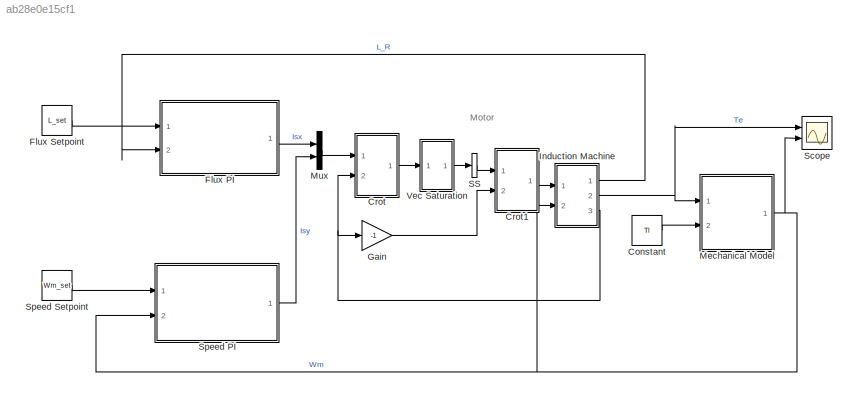
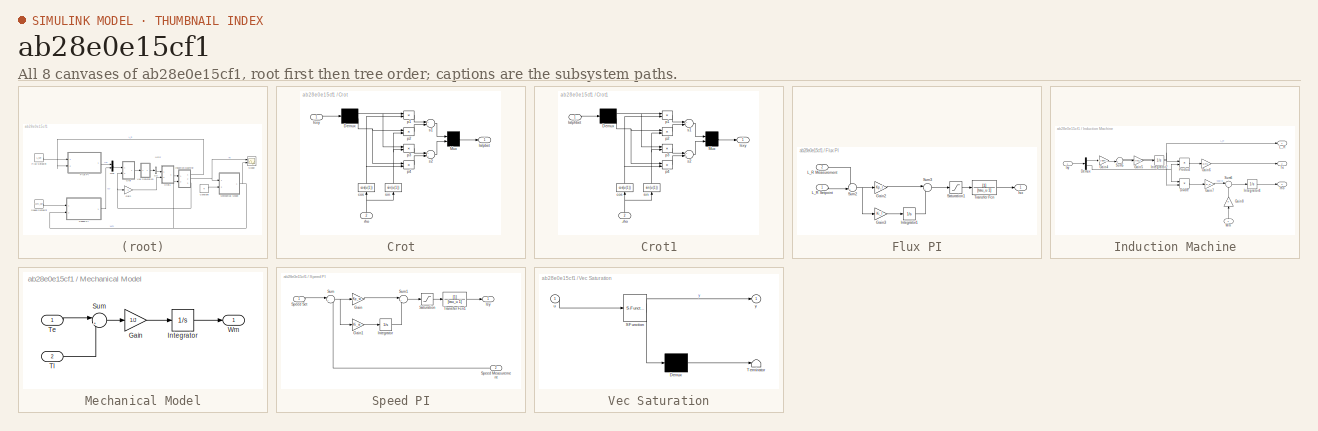
[diagram: thumbnail index - all 8 canvases of the model, root first then tree order]
MODEL slx_ab28e0e15cf1
KIND model
CONFIG AbsTol = auto
CONFIG EnableMultiTasking = off
CONFIG FixedStep = auto
CONFIG MaxStep = auto
CONFIG MinStep = auto
CONFIG RelTol = 1e-3
CONFIG SampleTimeConstraint = Unconstrained
CONFIG Solver = VariableStepAuto
CONFIG SolverName = VariableStepAuto
CONFIG StartTime = 0.0
CONFIG StopTime = runtime
BLOCK [Constant] Constant
  Value = Tl
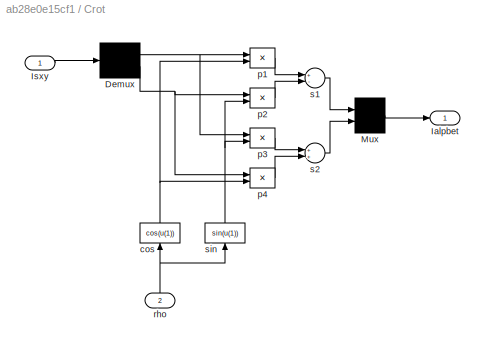
BLOCK [SubSystem] Crot
  Ports = [2, 1]
  RequestExecContextInheritance = off
  Variant = off
BLOCK [Demux] Crot/Demux
  Outputs = 2
  Ports = [1, 2]
BLOCK [Outport] Crot/Ialpbet
  IconDisplay = Port number
BLOCK [Inport] Crot/Isxy
  IconDisplay = Port number
BLOCK [Mux] Crot/Mux
  Inputs = 2
  Ports = [2, 1]
BLOCK [Fcn] Crot/cos
  Expr = cos(u(1))
BLOCK [Product] Crot/p1
  Ports = [2, 1]
BLOCK [Product] Crot/p2
  Ports = [2, 1]
BLOCK [Product] Crot/p3
  Ports = [2, 1]
BLOCK [Product] Crot/p4
  Ports = [2, 1]
BLOCK [Inport] Crot/rho
  IconDisplay = Port number
  Port = 2
BLOCK [Sum] Crot/s1
  Inputs = +-
  Ports = [2, 1]
BLOCK [Sum] Crot/s2
  Ports = [2, 1]
BLOCK [Fcn] Crot/sin
  Expr = sin(u(1))
BLOCK [SubSystem] Crot1
  Ports = [2, 1]
  RequestExecContextInheritance = off
  Variant = off
BLOCK [Inport] Crot1/-rho
  IconDisplay = Port number
  Port = 2
BLOCK [Demux] Crot1/Demux
  Outputs = 2
  Ports = [1, 2]
BLOCK [Inport] Crot1/Ialphbet
  IconDisplay = Port number
BLOCK [Outport] Crot1/Isxy
  IconDisplay = Port number
BLOCK [Mux] Crot1/Mux
  Inputs = 2
  Ports = [2, 1]
BLOCK [Fcn] Crot1/cos
  Expr = cos(u(1))
BLOCK [Product] Crot1/p1
  Ports = [2, 1]
BLOCK [Product] Crot1/p2
  Ports = [2, 1]
BLOCK [Product] Crot1/p3
  Ports = [2, 1]
BLOCK [Product] Crot1/p4
  Ports = [2, 1]
BLOCK [Sum] Crot1/s1
  Inputs = +-
  Ports = [2, 1]
BLOCK [Sum] Crot1/s2
  Ports = [2, 1]
BLOCK [Fcn] Crot1/sin
  Expr = sin(u(1))
BLOCK [SubSystem] Flux PI
  Ports = [2, 1]
  RequestExecContextInheritance = off
  Variant = off
BLOCK [Gain] Flux PI/Gain2
  Gain = Kp_l
  OutDataTypeStr = Inherit: Inherit via internal rule
  ParamDataTypeStr = Inherit: Inherit via internal rule
  SaturateOnIntegerOverflow = off
BLOCK [Gain] Flux PI/Gain3
  Gain = Ki_l
  OutDataTypeStr = Inherit: Inherit via internal rule
  ParamDataTypeStr = Inherit: Inherit via internal rule
  SaturateOnIntegerOverflow = off
BLOCK [Integrator] Flux PI/Integrator1
  LimitOutput = on
  LowerSaturationLimit = -Llim
  Ports = [1, 1]
  UpperSaturationLimit = Llim
BLOCK [Outport] Flux PI/Isx
  IconDisplay = Port number
BLOCK [Inport] Flux PI/L_R Measurement
  IconDisplay = Port number
  Port = 2
BLOCK [Inport] Flux PI/L_R Setpoint
  IconDisplay = Port number
BLOCK [Saturate] Flux PI/Saturation1
  InputPortMap = u0
  LowerLimit = -Isx_lim
  Ports = [1, 1]
  UpperLimit = Isx_lim
BLOCK [Sum] Flux PI/Sum2
  IconShape = round
  InputSameDT = off
  Inputs = -+|
  OutDataTypeStr = Inherit: Inherit via internal rule
  Ports = [2, 1]
  SaturateOnIntegerOverflow = off
BLOCK [Sum] Flux PI/Sum3
  IconShape = round
  InputSameDT = off
  Inputs = |++
  OutDataTypeStr = Inherit: Inherit via internal rule
  Ports = [2, 1]
  SaturateOnIntegerOverflow = off
BLOCK [TransferFcn] Flux PI/Transfer Fcn
  Denominator = [tau_u 1]
BLOCK [Constant] Flux Setpoint
  Value = L_set
BLOCK [Gain] Gain
  Gain = -1
  OutDataTypeStr = Inherit: Inherit via internal rule
  ParamDataTypeStr = Inherit: Inherit via internal rule
  SaturateOnIntegerOverflow = off
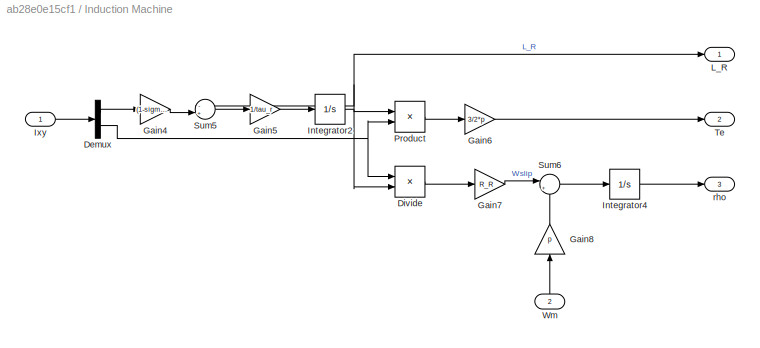
BLOCK [SubSystem] Induction Machine
  Ports = [2, 3]
  RequestExecContextInheritance = off
  Variant = off
BLOCK [Demux] Induction Machine/Demux
  DisplayOption = bar
  Outputs = 2
  Ports = [1, 2]
BLOCK [Product] Induction Machine/Divide
  InputSameDT = off
  Inputs = */
  OutDataTypeStr = Inherit: Inherit via internal rule
  Ports = [2, 1]
  RndMeth = Floor
  SaturateOnIntegerOverflow = off
BLOCK [Gain] Induction Machine/Gain4
  Gain = (1-sigma)*L_s
  OutDataTypeStr = Inherit: Inherit via internal rule
  ParamDataTypeStr = Inherit: Inherit via internal rule
  SaturateOnIntegerOverflow = off
BLOCK [Gain] Induction Machine/Gain5
  Gain = 1/tau_r
  OutDataTypeStr = Inherit: Inherit via internal rule
  ParamDataTypeStr = Inherit: Inherit via internal rule
  SaturateOnIntegerOverflow = off
BLOCK [Gain] Induction Machine/Gain6
  Gain = 3/2*p
  OutDataTypeStr = Inherit: Inherit via internal rule
  ParamDataTypeStr = Inherit: Inherit via internal rule
  SaturateOnIntegerOverflow = off
BLOCK [Gain] Induction Machine/Gain7
  Gain = R_R
  OutDataTypeStr = Inherit: Inherit via internal rule
  ParamDataTypeStr = Inherit: Inherit via internal rule
  SaturateOnIntegerOverflow = off
BLOCK [Gain] Induction Machine/Gain8
  Gain = p
  OutDataTypeStr = Inherit: Inherit via internal rule
  ParamDataTypeStr = Inherit: Inherit via internal rule
  SaturateOnIntegerOverflow = off
BLOCK [Integrator] Induction Machine/Integrator2
  InitialCondition = L0
  Ports = [1, 1]
BLOCK [Integrator] Induction Machine/Integrator4
  InitialCondition = rho0
  Ports = [1, 1]
BLOCK [Inport] Induction Machine/Ixy
  IconDisplay = Port number
BLOCK [Outport] Induction Machine/L_R
  IconDisplay = Port number
BLOCK [Product] Induction Machine/Product
  InputSameDT = off
  OutDataTypeStr = Inherit: Inherit via internal rule
  Ports = [2, 1]
  RndMeth = Floor
  SaturateOnIntegerOverflow = off
BLOCK [Sum] Induction Machine/Sum5
  IconShape = round
  InputSameDT = off
  Inputs = -+|
  OutDataTypeStr = Inherit: Inherit via internal rule
  Ports = [2, 1]
  SaturateOnIntegerOverflow = off
BLOCK [Sum] Induction Machine/Sum6
  IconShape = round
  InputSameDT = off
  Inputs = |++
  OutDataTypeStr = Inherit: Inherit via internal rule
  Ports = [2, 1]
  SaturateOnIntegerOverflow = off
BLOCK [Outport] Induction Machine/Te
  IconDisplay = Port number
  Port = 2
BLOCK [Inport] Induction Machine/Wm
  IconDisplay = Port number
  Port = 2
BLOCK [Outport] Induction Machine/rho
  IconDisplay = Port number
  Port = 3
BLOCK [SubSystem] Mechanical Model
  Ports = [2, 1]
  RequestExecContextInheritance = off
  Variant = off
BLOCK [Gain] Mechanical Model/Gain
  Gain = 1/J
  OutDataTypeStr = Inherit: Inherit via internal rule
  ParamDataTypeStr = Inherit: Inherit via internal rule
  SaturateOnIntegerOverflow = off
BLOCK [Integrator] Mechanical Model/Integrator
  InitialCondition = Wm0
  Ports = [1, 1]
BLOCK [Sum] Mechanical Model/Sum
  IconShape = round
  InputSameDT = off
  Inputs = |+-
  OutDataTypeStr = Inherit: Inherit via internal rule
  Ports = [2, 1]
  SaturateOnIntegerOverflow = off
BLOCK [Inport] Mechanical Model/Te
  IconDisplay = Port number
BLOCK [Inport] Mechanical Model/Tl
  IconDisplay = Port number
  Port = 2
BLOCK [Outport] Mechanical Model/Wm
  IconDisplay = Port number
BLOCK [Mux] Mux
  DisplayOption = bar
  Inputs = 2
  Ports = [2, 1]
BLOCK [SignalSpecification] SS
  Dimensions = [2 1]
BLOCK [Scope] Scope
  NumInputPorts = 2
  Ports = [2]
  ScopeSpecificationString = Simulink.scopes.TimeScopeBlockCfg('CurrentConfiguration', extmgr.ConfigurationSet(extmgr.Configuration('Core','General UI',true),extmgr.Configuration('Core','Source UI',true),extmgr.Configuration('Sources','WiredSimulink',true),extmgr.Configuration('Visuals','Time Domain',true,'SerializedDisplays',{struct('MinYLimReal','-2.77151','MaxYLimReal','24.94359','YLabelReal','','MinYLimMag','0.00000','Max...<+2031ch>
BLOCK [SubSystem] Speed PI
  Ports = [2, 1]
  RequestExecContextInheritance = off
  Variant = off
BLOCK [Gain] Speed PI/Gain
  Gain = Kp_w
  OutDataTypeStr = Inherit: Inherit via internal rule
  ParamDataTypeStr = Inherit: Inherit via internal rule
  SaturateOnIntegerOverflow = off
BLOCK [Gain] Speed PI/Gain1
  Gain = Ki_w
  OutDataTypeStr = Inherit: Inherit via internal rule
  ParamDataTypeStr = Inherit: Inherit via internal rule
  SaturateOnIntegerOverflow = off
BLOCK [Integrator] Speed PI/Integrator
  LimitOutput = on
  LowerSaturationLimit = -Wlim
  Ports = [1, 1]
  UpperSaturationLimit = Wlim
BLOCK [Outport] Speed PI/Isy
  IconDisplay = Port number
BLOCK [Saturate] Speed PI/Saturation
  InputPortMap = u0
  LowerLimit = -Isy_lim
  Ports = [1, 1]
  UpperLimit = Isy_lim
BLOCK [Inport] Speed PI/Speed Measurement
  IconDisplay = Port number
  Port = 2
BLOCK [Inport] Speed PI/Speed Set
  IconDisplay = Port number
BLOCK [Sum] Speed PI/Sum
  IconShape = round
  InputSameDT = off
  Inputs = |+-
  OutDataTypeStr = Inherit: Inherit via internal rule
  Ports = [2, 1]
  SaturateOnIntegerOverflow = off
BLOCK [Sum] Speed PI/Sum1
  IconShape = round
  InputSameDT = off
  Inputs = |++
  OutDataTypeStr = Inherit: Inherit via internal rule
  Ports = [2, 1]
  SaturateOnIntegerOverflow = off
BLOCK [TransferFcn] Speed PI/Transfer Fcn1
  Denominator = [tau_u 1]
BLOCK [Constant] Speed Setpoint 
  Value = Wm_set
BLOCK [SubSystem] Vec Saturation
  ErrorFcn = Stateflow.Translate.translate
  PermitHierarchicalResolution = ExplicitOnly
  Ports = [1, 1]
  RequestExecContextInheritance = off
  SFBlockType = MATLAB Function
  TreatAsAtomicUnit = on
  Variant = off
BLOCK [Demux] Vec Saturation/ Demux 
  Outputs = 1
  Ports = [1, 1]
BLOCK [S-Function] Vec Saturation/ SFunction 
  EnableBusSupport = on
  FunctionName = sf_sfun
  Parameters = Imax
  PortCounts = [1 2]
  Ports = [1, 2]
  SFcnIsStateOwnerBlock = off
  SFunctionDeploymentMode = off
  Tag = Stateflow S-Function Home_5_4 2
BLOCK [Terminator] Vec Saturation/ Terminator 
BLOCK [Inport] Vec Saturation/u
  IconDisplay = Port number
BLOCK [Outport] Vec Saturation/y
  IconDisplay = Port number
ANNOTATION (root): Motor
LINE Constant:1 -> Mechanical Model:2
NET Crot/Demux:1 -> Crot/p1:1, Crot/p3:1
NET Crot/Demux:2 -> Crot/p2:1, Crot/p4:1
LINE Crot/Isxy:1 -> Crot/Demux:1
LINE Crot/Mux:1 -> Crot/Ialpbet:1
NET Crot/cos:1 -> Crot/p1:2, Crot/p4:2
LINE Crot/p1:1 -> Crot/s1:1
LINE Crot/p2:1 -> Crot/s1:2
LINE Crot/p3:1 -> Crot/s2:1
LINE Crot/p4:1 -> Crot/s2:2
NET Crot/rho:1 -> Crot/cos:1, Crot/sin:1
LINE Crot/s1:1 -> Crot/Mux:1
LINE Crot/s2:1 -> Crot/Mux:2
NET Crot/sin:1 -> Crot/p2:2, Crot/p3:2
NET Crot1/-rho:1 -> Crot1/cos:1, Crot1/sin:1
NET Crot1/Demux:1 -> Crot1/p1:1, Crot1/p3:1
NET Crot1/Demux:2 -> Crot1/p2:1, Crot1/p4:1
LINE Crot1/Ialphbet:1 -> Crot1/Demux:1
LINE Crot1/Mux:1 -> Crot1/Isxy:1
NET Crot1/cos:1 -> Crot1/p1:2, Crot1/p4:2
LINE Crot1/p1:1 -> Crot1/s1:1
LINE Crot1/p2:1 -> Crot1/s1:2
LINE Crot1/p3:1 -> Crot1/s2:1
LINE Crot1/p4:1 -> Crot1/s2:2
LINE Crot1/s1:1 -> Crot1/Mux:1
LINE Crot1/s2:1 -> Crot1/Mux:2
NET Crot1/sin:1 -> Crot1/p2:2, Crot1/p3:2
LINE Crot1:1 -> Induction Machine:1
LINE Crot:1 -> Vec Saturation:1
LINE Flux PI/Gain2:1 -> Flux PI/Sum3:1
LINE Flux PI/Gain3:1 -> Flux PI/Integrator1:1
LINE Flux PI/Integrator1:1 -> Flux PI/Sum3:2
LINE Flux PI/L_R Measurement:1 -> Flux PI/Sum2:1
LINE Flux PI/L_R Setpoint:1 -> Flux PI/Sum2:2
LINE Flux PI/Saturation1:1 -> Flux PI/Transfer Fcn:1
NET Flux PI/Sum2:1 -> Flux PI/Gain2:1, Flux PI/Gain3:1
LINE Flux PI/Sum3:1 -> Flux PI/Saturation1:1
LINE Flux PI/Transfer Fcn:1 -> Flux PI/Isx:1
LINE Flux PI:1 -> Mux:1
LINE Flux Setpoint:1 -> Flux PI:1
LINE Gain:1 -> Crot1:2
LINE Induction Machine/Demux:1 -> Induction Machine/Gain4:1
NET Induction Machine/Demux:2 -> Induction Machine/Divide:1, Induction Machine/Product:2
LINE Induction Machine/Divide:1 -> Induction Machine/Gain7:1
LINE Induction Machine/Gain4:1 -> Induction Machine/Sum5:2
LINE Induction Machine/Gain5:1 -> Induction Machine/Integrator2:1
LINE Induction Machine/Gain6:1 -> Induction Machine/Te:1
LINE Induction Machine/Gain7:1 -> Induction Machine/Sum6:1
LINE Induction Machine/Gain8:1 -> Induction Machine/Sum6:2
NET Induction Machine/Integrator2:1 -> Induction Machine/Divide:2, Induction Machine/L_R:1, Induction Machine/Product:1, Induction Machine/Sum5:1
LINE Induction Machine/Integrator4:1 -> Induction Machine/rho:1
LINE Induction Machine/Ixy:1 -> Induction Machine/Demux:1
LINE Induction Machine/Product:1 -> Induction Machine/Gain6:1
LINE Induction Machine/Sum5:1 -> Induction Machine/Gain5:1
LINE Induction Machine/Sum6:1 -> Induction Machine/Integrator4:1
LINE Induction Machine/Wm:1 -> Induction Machine/Gain8:1
LINE Induction Machine:1 -> Flux PI:2
NET Induction Machine:2 -> Mechanical Model:1, Scope:1
NET Induction Machine:3 -> Crot:2, Gain:1
LINE Mechanical Model/Gain:1 -> Mechanical Model/Integrator:1
LINE Mechanical Model/Integrator:1 -> Mechanical Model/Wm:1
LINE Mechanical Model/Sum:1 -> Mechanical Model/Gain:1
LINE Mechanical Model/Te:1 -> Mechanical Model/Sum:1
LINE Mechanical Model/Tl:1 -> Mechanical Model/Sum:2
NET Mechanical Model:1 -> Induction Machine:2, Scope:2, Speed PI:2
LINE Mux:1 -> Crot:1
LINE SS:1 -> Crot1:1
LINE Speed PI/Gain1:1 -> Speed PI/Integrator:1
LINE Speed PI/Gain:1 -> Speed PI/Sum1:1
LINE Speed PI/Integrator:1 -> Speed PI/Sum1:2
LINE Speed PI/Saturation:1 -> Speed PI/Transfer Fcn1:1
LINE Speed PI/Speed Measurement:1 -> Speed PI/Sum:2
LINE Speed PI/Speed Set:1 -> Speed PI/Sum:1
LINE Speed PI/Sum1:1 -> Speed PI/Saturation:1
NET Speed PI/Sum:1 -> Speed PI/Gain1:1, Speed PI/Gain:1
LINE Speed PI/Transfer Fcn1:1 -> Speed PI/Isy:1
LINE Speed PI:1 -> Mux:2
LINE Speed Setpoint :1 -> Speed PI:1
LINE Vec Saturation:1 -> SS:1
note: NET lines group one-source signal fan-out (src -> all destinations, sorted); 1:1 wires keep LINE
CHART Vec Saturation states=1 transitions=1
  STATE_LABEL 'eML_blk_kernel()'
  STATE_LABEL 'SCRIPT:\nfunction y = fcn(u,Imax)\ny = u;\nif u(1) >= Imax\n    u(1) = Imax;\nelseif u(1) <= -Imax\n    u(1) = Imax;\nend\nif u(2) >= Imax\n    u(2) = Imax;\nelseif u(2) <= -Imax\n    u(2) = Imax;\nend\n'
